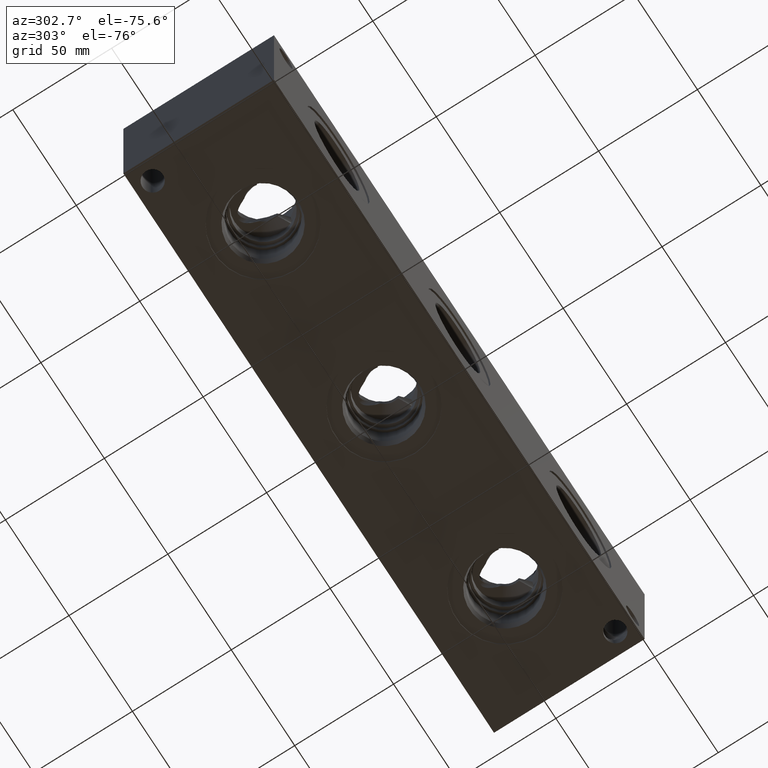
[diagram: clean part render]
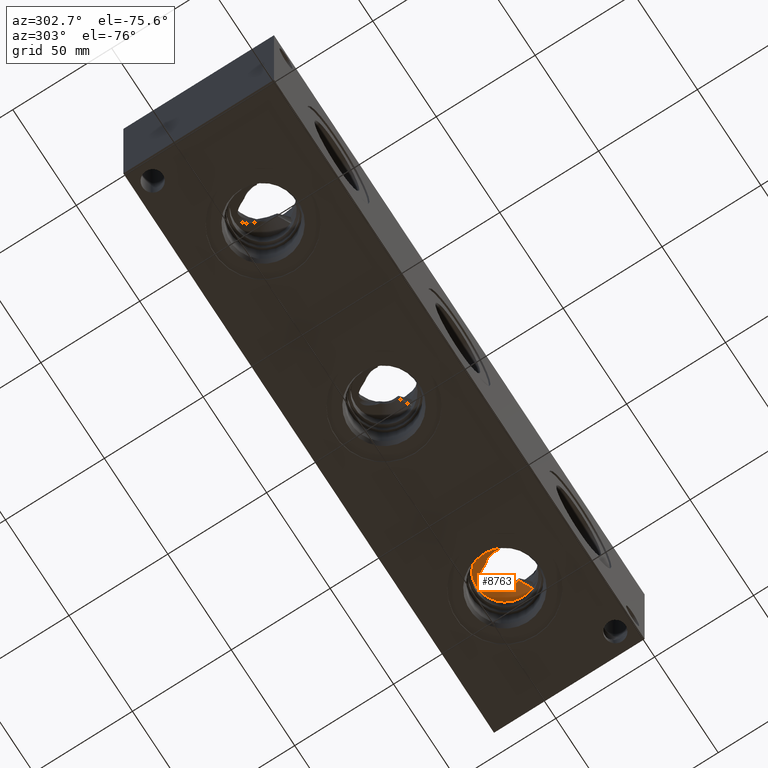
[diagram: same view with one face highlighted and labeled with its STEP entity id]
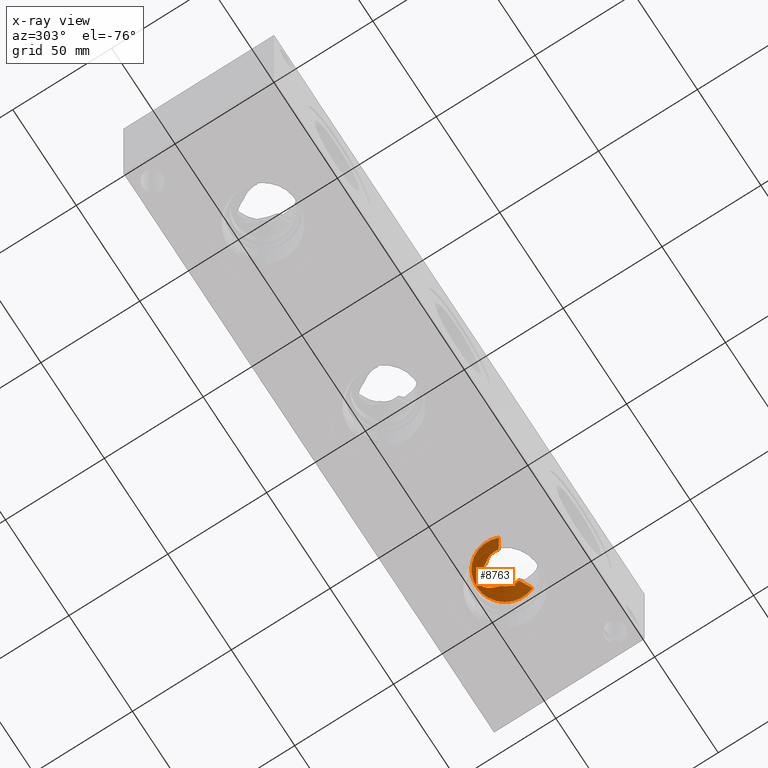
[diagram: x-ray of the same camera — body ghosted, the highlighted face saturated]
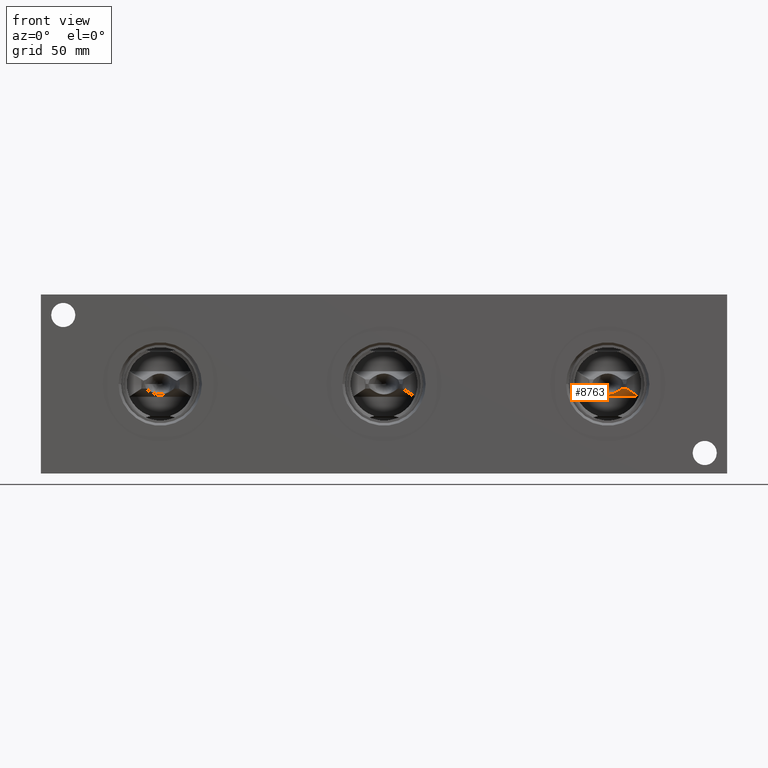
[diagram: same view with one face highlighted and labeled with its STEP entity id]
A machine part, auxiliary view. The second image highlights one B-rep face of the part: STEP entity #8763.
The next image is the same camera in x-ray: the body ghosted, the highlighted face saturated — about 18% of this face is hidden behind the body in this view.
A second angle (front view) of the same face is appended — the face is thin or edge-on in the first view.
In plain terms, the highlighted conical surface has half-angle 60 deg.
Its self-contained STEP definition (entity closure, byte-faithful):
#127=CONICAL_SURFACE('',#9166,7.14375,1.0471975511966);
#212=CIRCLE('',#9167,14.2875);
#213=CIRCLE('',#9168,8.29239320143379);
#214=CIRCLE('',#9169,8.29239320143379);
#679=B_SPLINE_CURVE_WITH_KNOTS('',3,(#14788,#14789,#14790,#14791,#14792,
#14793),.UNSPECIFIED.,.F.,.F.,(4,2,4),(1.89334537547934,2.43219990459437,
2.55886951278607),.UNSPECIFIED.);
#680=B_SPLINE_CURVE_WITH_KNOTS('',3,(#14797,#14798,#14799,#14800,#14801,
#14802),.UNSPECIFIED.,.F.,.F.,(4,2,4),(4.45334181116797,4.77654328481304,
5.11702211085738),.UNSPECIFIED.);
#681=B_SPLINE_CURVE_WITH_KNOTS('',3,(#14806,#14807,#14808,#14809,#14810,
#14811,#14812,#14813,#14814,#14815,#14816,#14817,#14818,#14819,#14820,#14821,
#14822,#14823,#14824,#14825,#14826,#14827),.UNSPECIFIED.,.F.,.F.,(4,2,2,
2,2,2,2,2,2,2,4),(3.91737688950781,4.14774993317114,4.34613855617472,4.5445271791783,
4.69139542029641,4.83826366141451,4.98513190253262,5.13200014365072,5.3303887666543,
5.52877738965788,5.75915043332121),.UNSPECIFIED.);
#1131=FACE_OUTER_BOUND('',#1631,.T.);
#1631=EDGE_LOOP('',(#7153,#7154,#7155,#7156,#7157,#7158));
#3922=VERTEX_POINT('',#14786);
#3923=VERTEX_POINT('',#14787);
#3924=VERTEX_POINT('',#14794);
#3925=VERTEX_POINT('',#14796);
#3926=VERTEX_POINT('',#14803);
#3927=VERTEX_POINT('',#14805);
#5035=EDGE_CURVE('',#3922,#3923,#679,.T.);
#5036=EDGE_CURVE('',#3922,#3924,#212,.T.);
#5037=EDGE_CURVE('',#3925,#3924,#680,.T.);
#5038=EDGE_CURVE('',#3926,#3925,#213,.T.);
#5039=EDGE_CURVE('',#3927,#3926,#681,.T.);
#5040=EDGE_CURVE('',#3923,#3927,#214,.T.);
#7153=ORIENTED_EDGE('',*,*,#5035,.F.);
#7154=ORIENTED_EDGE('',*,*,#5036,.T.);
#7155=ORIENTED_EDGE('',*,*,#5037,.F.);
#7156=ORIENTED_EDGE('',*,*,#5038,.F.);
#7157=ORIENTED_EDGE('',*,*,#5039,.F.);
#7158=ORIENTED_EDGE('',*,*,#5040,.F.);
#8763=ADVANCED_FACE('',(#1131),#127,.F.);
#9166=AXIS2_PLACEMENT_3D('',#14785,#10693,#10694);
#9167=AXIS2_PLACEMENT_3D('',#14795,#10695,#10696);
#9168=AXIS2_PLACEMENT_3D('',#14804,#10697,#10698);
#9169=AXIS2_PLACEMENT_3D('',#14828,#10699,#10700);
#10693=DIRECTION('center_axis',(0.,0.,-1.));
#10694=DIRECTION('ref_axis',(-1.83697019872103E-16,1.,0.));
#10695=DIRECTION('center_axis',(0.,0.,-1.));
#10696=DIRECTION('ref_axis',(1.,0.,0.));
#10697=DIRECTION('center_axis',(0.,0.,-1.));
#10698=DIRECTION('ref_axis',(1.,0.,0.));
#10699=DIRECTION('center_axis',(0.,0.,-1.));
#10700=DIRECTION('ref_axis',(1.,0.,0.));
#14785=CARTESIAN_POINT('Origin',(241.3,38.1,36.7715359855234));
#14786=CARTESIAN_POINT('',(228.094000273289,32.64709,32.64709));
#14787=CARTESIAN_POINT('',(233.250330372969,36.1083665239728,36.1083665239728));
#14788=CARTESIAN_POINT('Ctrl Pts',(228.094000273289,32.64709,32.64709));
#14789=CARTESIAN_POINT('Ctrl Pts',(229.492213916122,33.6041249857186,33.6041249857186));
#14790=CARTESIAN_POINT('Ctrl Pts',(230.885694568633,34.549892076967,34.549892076967));
#14791=CARTESIAN_POINT('Ctrl Pts',(232.599044566969,35.6826345138399,35.6826345138399));
#14792=CARTESIAN_POINT('Ctrl Pts',(232.924761787857,35.8965263770407,35.8965263770407));
#14793=CARTESIAN_POINT('Ctrl Pts',(233.250330372969,36.1083665239728,36.1083665239728));
#14794=CARTESIAN_POINT('',(254.505999726711,32.64709,32.64709));
#14795=CARTESIAN_POINT('Origin',(241.3,38.1,32.64709));
#14796=CARTESIAN_POINT('',(249.349669627032,36.1083665239728,36.1083665239728));
#14797=CARTESIAN_POINT('Ctrl Pts',(249.349669627032,36.1083665239728,36.1083665239728));
#14798=CARTESIAN_POINT('Ctrl Pts',(250.178656325694,35.5689635469042,35.5689635469042));
#14799=CARTESIAN_POINT('Ctrl Pts',(251.011287906548,35.0149419436562,35.0149419436562));
#14800=CARTESIAN_POINT('Ctrl Pts',(252.730241313205,33.8588517962973,33.8588517962973));
#14801=CARTESIAN_POINT('Ctrl Pts',(253.616795396396,33.2557234931187,33.2557234931187));
#14802=CARTESIAN_POINT('Ctrl Pts',(254.505999726711,32.64709,32.64709));
#14803=CARTESIAN_POINT('',(247.156203807601,43.971001785984,36.1083665239727));
#14804=CARTESIAN_POINT('Origin',(241.3,38.1,36.1083665239728));
#14805=CARTESIAN_POINT('',(235.443796192399,43.971001785984,36.1083665239728));
#14806=CARTESIAN_POINT('Ctrl Pts',(235.443796192399,43.971001785984,36.1083665239728));
#14807=CARTESIAN_POINT('Ctrl Pts',(235.724124240269,44.727333429103,35.9135049916732));
#14808=CARTESIAN_POINT('Ctrl Pts',(236.027129748003,45.4513589268671,35.6850588147045));
#14809=CARTESIAN_POINT('Ctrl Pts',(236.624887209892,46.6792060341791,35.2635068987395));
#14810=CARTESIAN_POINT('Ctrl Pts',(236.956686494726,47.2856851471128,35.0388568922905));
#14811=CARTESIAN_POINT('Ctrl Pts',(237.721375541836,48.4258620302188,34.5950154458574));
#14812=CARTESIAN_POINT('Ctrl Pts',(238.155455430922,48.9591198730063,34.3767457241596));
#14813=CARTESIAN_POINT('Ctrl Pts',(238.968826003782,49.7104347415439,34.0630192442118));
#14814=CARTESIAN_POINT('Ctrl Pts',(239.386200609436,50.0219898085588,33.9302696275843));
#14815=CARTESIAN_POINT('Ctrl Pts',(240.305875257148,50.4618900674794,33.7412263737322));
#14816=CARTESIAN_POINT('Ctrl Pts',(240.810439196273,50.586366158004,33.686975108523));
#14817=CARTESIAN_POINT('Ctrl Pts',(241.789560803727,50.586366158004,33.686975108523));
#14818=CARTESIAN_POINT('Ctrl Pts',(242.294124742852,50.4618900674794,33.7412263737322));
#14819=CARTESIAN_POINT('Ctrl Pts',(243.213799390564,50.0219898085588,33.9302696275843));
#14820=CARTESIAN_POINT('Ctrl Pts',(243.631173996218,49.7104347415439,34.0630192442118));
#14821=CARTESIAN_POINT('Ctrl Pts',(244.444544569079,48.9591198730063,34.3767457241596));
#14822=CARTESIAN_POINT('Ctrl Pts',(244.878624458164,48.4258620302188,34.5950154458574));
#14823=CARTESIAN_POINT('Ctrl Pts',(245.643313505274,47.2856851471128,35.0388568922904));
#14824=CARTESIAN_POINT('Ctrl Pts',(245.975112790108,46.6792060341791,35.2635068987395));
#14825=CARTESIAN_POINT('Ctrl Pts',(246.572870251997,45.4513589268671,35.6850588147045));
#14826=CARTESIAN_POINT('Ctrl Pts',(246.875875759731,44.7273334291031,35.9135049916732));
#14827=CARTESIAN_POINT('Ctrl Pts',(247.156203807601,43.971001785984,36.1083665239728));
#14828=CARTESIAN_POINT('Origin',(241.3,38.1,36.1083665239728));